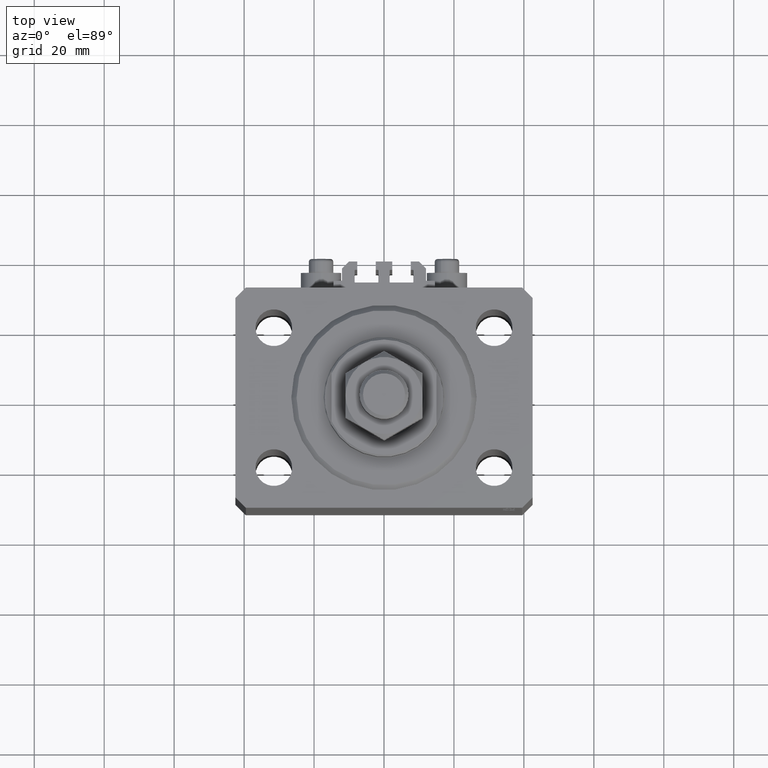
[diagram: clean part render]
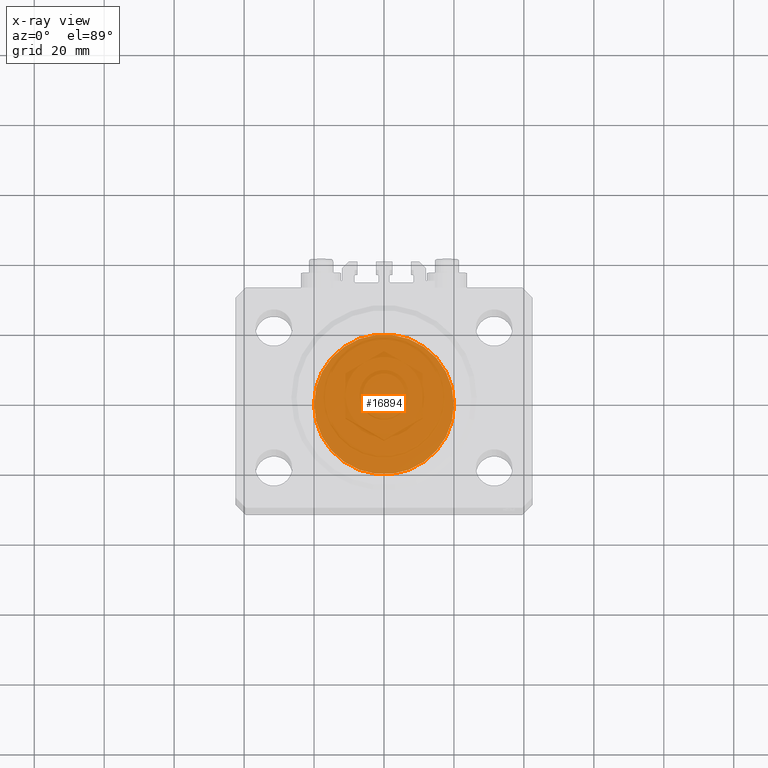
[diagram: x-ray — body ghosted, one internal face saturated and labeled with its STEP entity id]
A machine part, top view, then the same camera in x-ray: the body is ghosted and one INTERNAL B-rep face — a face not visible from any outside direction — is saturated and labeled: STEP entity #16894.
In plain terms, the highlighted planar face has unit normal (0, 0, 1).
Its self-contained STEP definition (entity closure, byte-faithful):
#301 = ORIENTED_EDGE ( 'NONE', *, *, #14624, .F. ) ;
#409 = DIRECTION ( 'NONE',  ( 1.000000000000000000, 0.000000000000000000, 0.000000000000000000 ) ) ;
#688 = CARTESIAN_POINT ( 'NONE',  ( 20.00000000000000000, 2.449293598294706513E-15, 0.000000000000000000 ) ) ;
#3095 = DIRECTION ( 'NONE',  ( 1.000000000000000000, 0.000000000000000000, -0.000000000000000000 ) ) ;
#3623 = CARTESIAN_POINT ( 'NONE',  ( 0.000000000000000000, 0.000000000000000000, 0.000000000000000000 ) ) ;
#5957 = VERTEX_POINT ( 'NONE', #688 ) ;
#6828 = CARTESIAN_POINT ( 'NONE',  ( 0.000000000000000000, 0.000000000000000000, 0.000000000000000000 ) ) ;
#8907 = ORIENTED_EDGE ( 'NONE', *, *, #17840, .F. ) ;
#9516 = VERTEX_POINT ( 'NONE', #10414 ) ;
#10046 = CARTESIAN_POINT ( 'NONE',  ( 0.000000000000000000, 0.000000000000000000, 0.000000000000000000 ) ) ;
#10414 = CARTESIAN_POINT ( 'NONE',  ( -20.00000000000000000, 0.000000000000000000, 0.000000000000000000 ) ) ;
#14624 = EDGE_CURVE ( 'NONE', #5957, #9516, #18727, .T. ) ;
#16894 = ADVANCED_FACE ( 'NONE', ( #44639 ), #32540, .F. ) ;
#17711 = DIRECTION ( 'NONE',  ( 1.000000000000000000, 0.000000000000000000, 0.000000000000000000 ) ) ;
#17840 = EDGE_CURVE ( 'NONE', #9516, #5957, #25064, .T. ) ;
#18713 = DIRECTION ( 'NONE',  ( 0.000000000000000000, 0.000000000000000000, 1.000000000000000000 ) ) ;
#18727 = CIRCLE ( 'NONE', #25037, 20.00000000000000000 ) ;
#21075 = AXIS2_PLACEMENT_3D ( 'NONE', #10046, #36983, #3095 ) ;
#21428 = DIRECTION ( 'NONE',  ( 0.000000000000000000, 0.000000000000000000, 1.000000000000000000 ) ) ;
#25037 = AXIS2_PLACEMENT_3D ( 'NONE', #3623, #18713, #409 ) ;
#25064 = CIRCLE ( 'NONE', #31402, 20.00000000000000000 ) ;
#31402 = AXIS2_PLACEMENT_3D ( 'NONE', #6828, #21428, #17711 ) ;
#32540 = PLANE ( 'NONE',  #21075 ) ;
#36983 = DIRECTION ( 'NONE',  ( 0.000000000000000000, 0.000000000000000000, 1.000000000000000000 ) ) ;
#44639 = FACE_OUTER_BOUND ( 'NONE', #48501, .T. ) ;
#48501 = EDGE_LOOP ( 'NONE', ( #8907, #301 ) ) ;